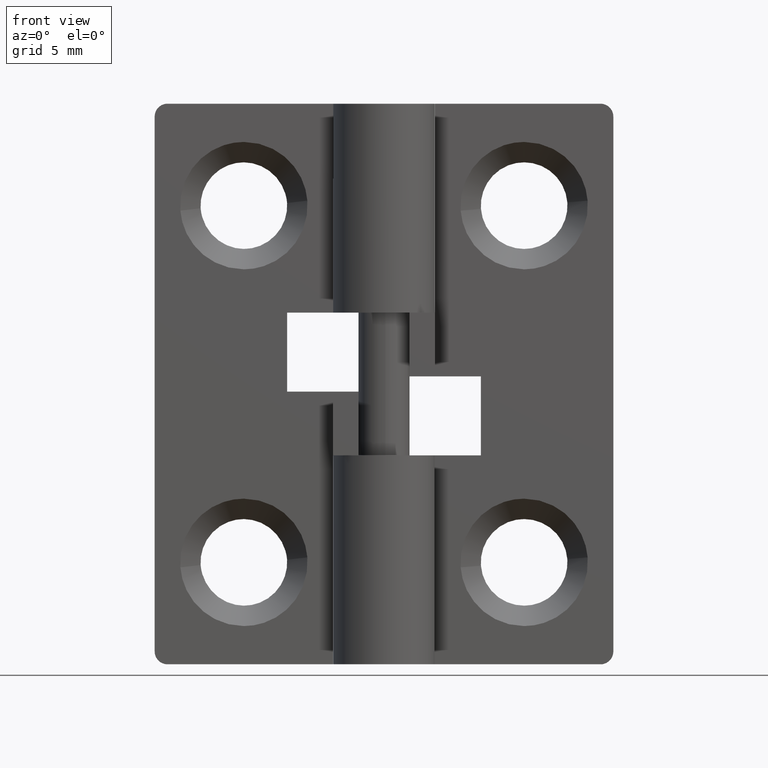
[diagram: clean part render]
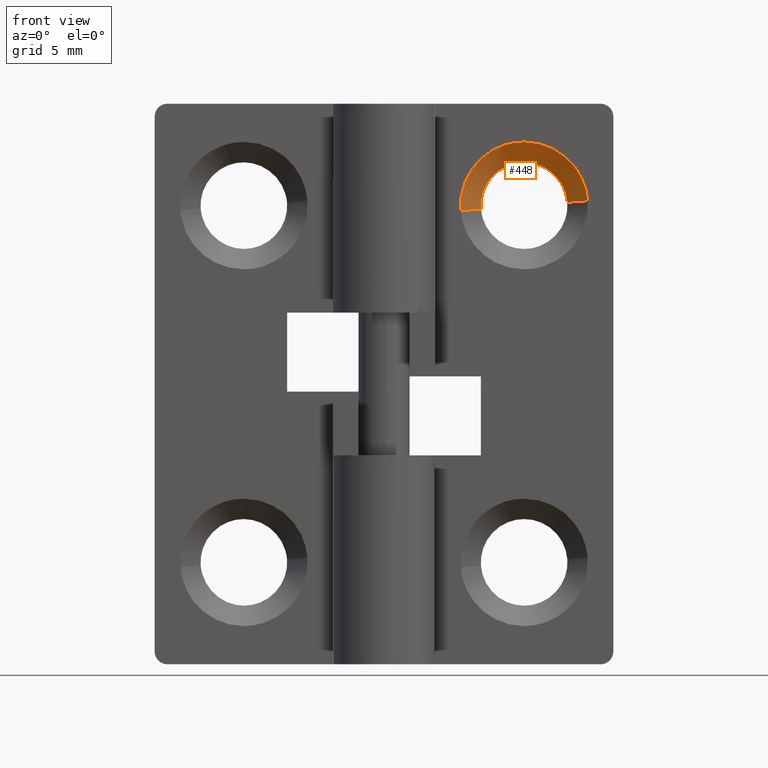
[diagram: same view with one face highlighted and labeled with its STEP entity id]
A machine part, front view. The second image highlights one B-rep face of the part: STEP entity #448.
In plain terms, the highlighted face is a freeform B-spline surface patch.
Its self-contained STEP definition (entity closure, byte-faithful):
#335=CARTESIAN_POINT('',(7.174820921288087,1.820008200000000,18.131819265130861));
#336=CARTESIAN_POINT('',(7.043009656157127,1.820008200000000,19.806640186419045));
#337=CARTESIAN_POINT('',(5.368188734868938,1.820008200000000,19.674828921288089));
#338=CARTESIAN_POINT('',(3.693367813580750,1.820008200000000,19.543017656157136));
#339=CARTESIAN_POINT('',(3.825179078711712,1.820008200000000,17.868196734868938));
#340=CARTESIAN_POINT('',(8.012738319380974,0.979499795000000,18.197764794538820));
#341=CARTESIAN_POINT('',(7.814981524842058,0.979499795000000,20.710503113919899));
#342=CARTESIAN_POINT('',(5.302243205460984,0.979499795000000,20.512746319380980));
#343=CARTESIAN_POINT('',(2.789504886079909,0.979499795000000,20.314989524842058));
#344=CARTESIAN_POINT('',(2.987261680618825,0.979499795000000,17.802251205460990));
#352=(BOUNDED_SURFACE()B_SPLINE_SURFACE(2,1,((#335,#340),(#336,#341),(#337,#342),(#338,#343),(#339,#344)),.UNSPECIFIED.,.F.,.F.,.U.)B_SPLINE_SURFACE_WITH_KNOTS((3,2,3),(2,2),(0.0,4.176114730334666,8.352229460669332),(0.0,1.0),.UNSPECIFIED.)GEOMETRIC_REPRESENTATION_ITEM()RATIONAL_B_SPLINE_SURFACE(((1.0,1.0),(0.707106781186548,0.707106781186548),(1.0,1.0),(0.707106781186548,0.707106781186548),(1.0,1.0)))REPRESENTATION_ITEM('')SURFACE());
#353=CARTESIAN_POINT('',(5.499999999999900,1.800008000000000,19.700007999999901));
#354=VERTEX_POINT('',#353);
#355=CARTESIAN_POINT('',(7.194759467350004,1.800007999990418,18.133388462811240));
#356=VERTEX_POINT('',#355);
#357=CARTESIAN_POINT('',(5.499999999999900,1.800008000000000,19.700007999999901));
#358=CARTESIAN_POINT('',(7.071463835755497,1.800007999995209,19.700008000000281));
#359=CARTESIAN_POINT('',(7.194759467350004,1.800007999990418,18.133388462811240));
#367=(BOUNDED_CURVE()B_SPLINE_CURVE(2,(#357,#358,#359),.UNSPECIFIED.,.F.,.U.)B_SPLINE_CURVE_WITH_KNOTS((3,3),(0.0,0.236331300625358),.UNSPECIFIED.)CURVE()GEOMETRIC_REPRESENTATION_ITEM()RATIONAL_B_SPLINE_CURVE((1.0,0.723120658613877,0.969723356156353))REPRESENTATION_ITEM(''));
#368=EDGE_CURVE('',#354,#356,#367,.T.);
#369=ORIENTED_EDGE('',*,*,#368,.T.);
#370=CARTESIAN_POINT('',(7.992301309672112,0.999999999998200,18.196156367006051));
#371=VERTEX_POINT('',#370);
#372=CARTESIAN_POINT('',(7.194759467350004,1.800007999990418,18.133388462811240));
#373=CARTESIAN_POINT('',(7.992301309672112,0.999999999998200,18.196156367006051));
#374=QUASI_UNIFORM_CURVE('',1,(#372,#373),.UNSPECIFIED.,.F.,.U.);
#375=EDGE_CURVE('',#356,#371,#374,.T.);
#376=ORIENTED_EDGE('',*,*,#375,.T.);
#377=CARTESIAN_POINT('',(5.499999999999900,1.0,20.500015999999899));
#378=VERTEX_POINT('',#377);
#379=CARTESIAN_POINT('',(5.499999999999900,1.0,20.500015999999899));
#380=CARTESIAN_POINT('',(7.810983624257577,0.999999999999100,20.500015999999974));
#381=CARTESIAN_POINT('',(7.992301309672112,0.999999999998200,18.196156367006051));
#389=(BOUNDED_CURVE()B_SPLINE_CURVE(2,(#379,#380,#381),.UNSPECIFIED.,.F.,.U.)B_SPLINE_CURVE_WITH_KNOTS((3,3),(0.0,0.236331300631830),.UNSPECIFIED.)CURVE()GEOMETRIC_REPRESENTATION_ITEM()RATIONAL_B_SPLINE_CURVE((1.0,0.723120658606295,0.969723356169860))REPRESENTATION_ITEM(''));
#390=EDGE_CURVE('',#378,#371,#389,.T.);
#391=ORIENTED_EDGE('',*,*,#390,.F.);
#392=CARTESIAN_POINT('',(3.007698690327687,0.999999999998200,17.803859632993749));
#393=VERTEX_POINT('',#392);
#394=CARTESIAN_POINT('',(3.007698690327687,0.999999999998200,17.803859632993753));
#395=CARTESIAN_POINT('',(2.999991999998137,0.999999999998233,17.901782418152880));
#396=CARTESIAN_POINT('',(2.999991999998172,0.999999999998268,18.000007999999770));
#397=CARTESIAN_POINT('',(2.999991999999071,0.999999999999168,20.500015999999839));
#398=CARTESIAN_POINT('',(5.499999999999900,1.0,20.500015999999899));
#406=(BOUNDED_CURVE()B_SPLINE_CURVE(2,(#394,#395,#396,#397,#398),.UNSPECIFIED.,.F.,.U.)B_SPLINE_CURVE_WITH_KNOTS((3,2,3),(0.736331300631830,0.750000000000000,1.0),.UNSPECIFIED.)CURVE()GEOMETRIC_REPRESENTATION_ITEM()RATIONAL_B_SPLINE_CURVE((0.969723356169859,0.983986122580253,1.0,0.707106781186548,1.0))REPRESENTATION_ITEM(''));
#407=EDGE_CURVE('',#393,#378,#406,.T.);
#408=ORIENTED_EDGE('',*,*,#407,.F.);
#409=CARTESIAN_POINT('',(3.805240532649795,1.800007999990418,17.866627537188560));
#410=VERTEX_POINT('',#409);
#411=CARTESIAN_POINT('',(3.805240532649795,1.800007999990418,17.866627537188560));
#412=CARTESIAN_POINT('',(3.007698690327687,0.999999999998200,17.803859632993749));
#413=QUASI_UNIFORM_CURVE('',1,(#411,#412),.UNSPECIFIED.,.F.,.U.);
#414=EDGE_CURVE('',#410,#393,#413,.T.);
#415=ORIENTED_EDGE('',*,*,#414,.F.);
#416=CARTESIAN_POINT('',(3.803170842685089,1.800008000000000,17.896225482752019));
#417=VERTEX_POINT('',#416);
#418=CARTESIAN_POINT('',(3.805240532649794,1.800007999990418,17.866627537188560));
#419=CARTESIAN_POINT('',(3.804076538988389,1.800007999995209,17.881417479014896));
#420=CARTESIAN_POINT('',(3.803170842685089,1.800008000000000,17.896225482752019));
#428=(BOUNDED_CURVE()B_SPLINE_CURVE(2,(#418,#419,#420),.UNSPECIFIED.,.F.,.U.)B_SPLINE_CURVE_WITH_KNOTS((3,3),(0.736331300625358,0.739332962238041),.UNSPECIFIED.)CURVE()GEOMETRIC_REPRESENTATION_ITEM()RATIONAL_B_SPLINE_CURVE((0.969723356156353,0.972855475553313,0.976072041664784))REPRESENTATION_ITEM(''));
#429=EDGE_CURVE('',#410,#417,#428,.T.);
#430=ORIENTED_EDGE('',*,*,#429,.T.);
#431=CARTESIAN_POINT('',(3.803170842685089,1.800008000000000,17.896225482752019));
#432=CARTESIAN_POINT('',(3.799999999999900,1.800008000000000,17.948068302372935));
#433=CARTESIAN_POINT('',(3.799999999999900,1.800008000000000,18.000007999999902));
#434=CARTESIAN_POINT('',(3.799999999999901,1.800008000000000,19.700007999999908));
#435=CARTESIAN_POINT('',(5.499999999999900,1.800008000000000,19.700007999999901));
#443=(BOUNDED_CURVE()B_SPLINE_CURVE(2,(#431,#432,#433,#434,#435),.UNSPECIFIED.,.F.,.U.)B_SPLINE_CURVE_WITH_KNOTS((3,2,3),(0.739332962238041,0.750000000000000,1.0),.UNSPECIFIED.)CURVE()GEOMETRIC_REPRESENTATION_ITEM()RATIONAL_B_SPLINE_CURVE((0.976072041664784,0.987502787898780,1.0,0.707106781186548,1.0))REPRESENTATION_ITEM(''));
#444=EDGE_CURVE('',#417,#354,#443,.T.);
#445=ORIENTED_EDGE('',*,*,#444,.T.);
#446=EDGE_LOOP('',(#369,#376,#391,#408,#415,#430,#445));
#447=FACE_OUTER_BOUND('',#446,.T.);
#448=ADVANCED_FACE('',(#447),#352,.F.);